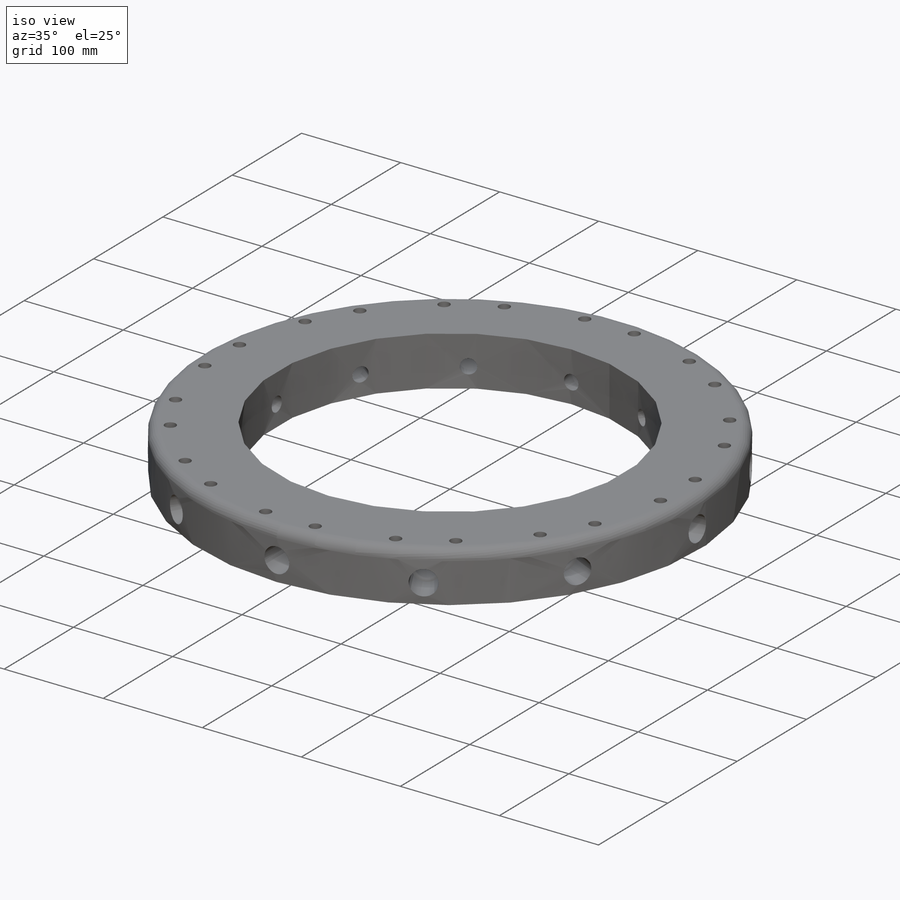
[diagram: iso view]
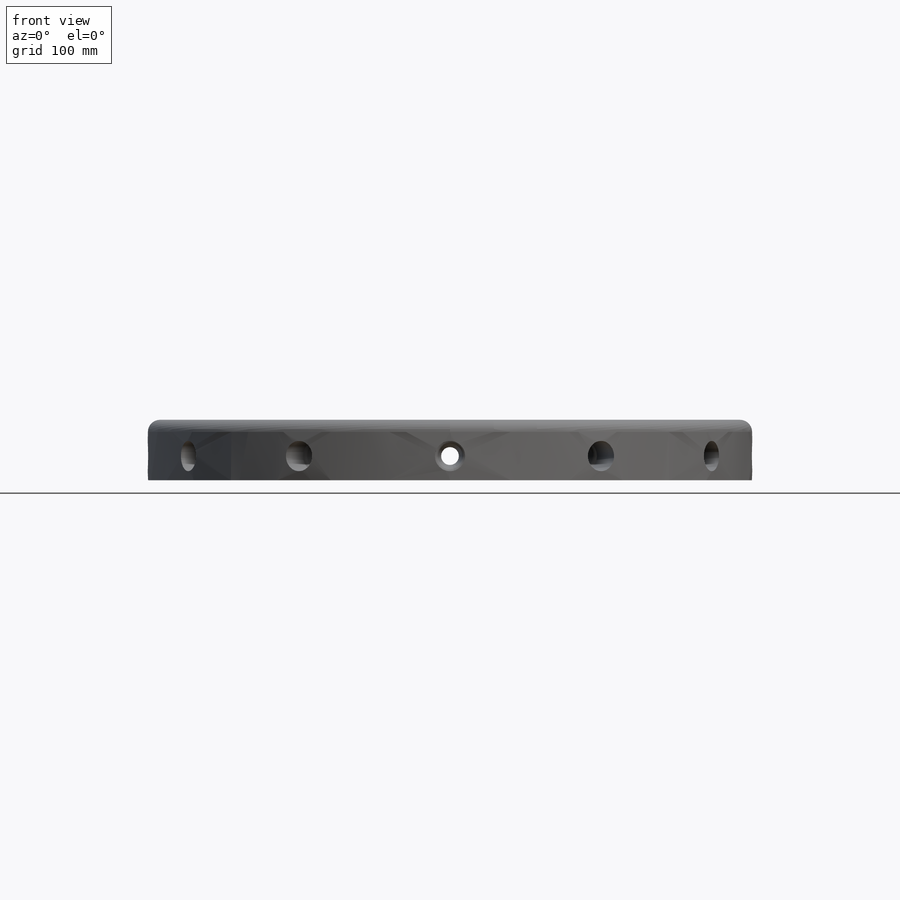
[diagram: front view]
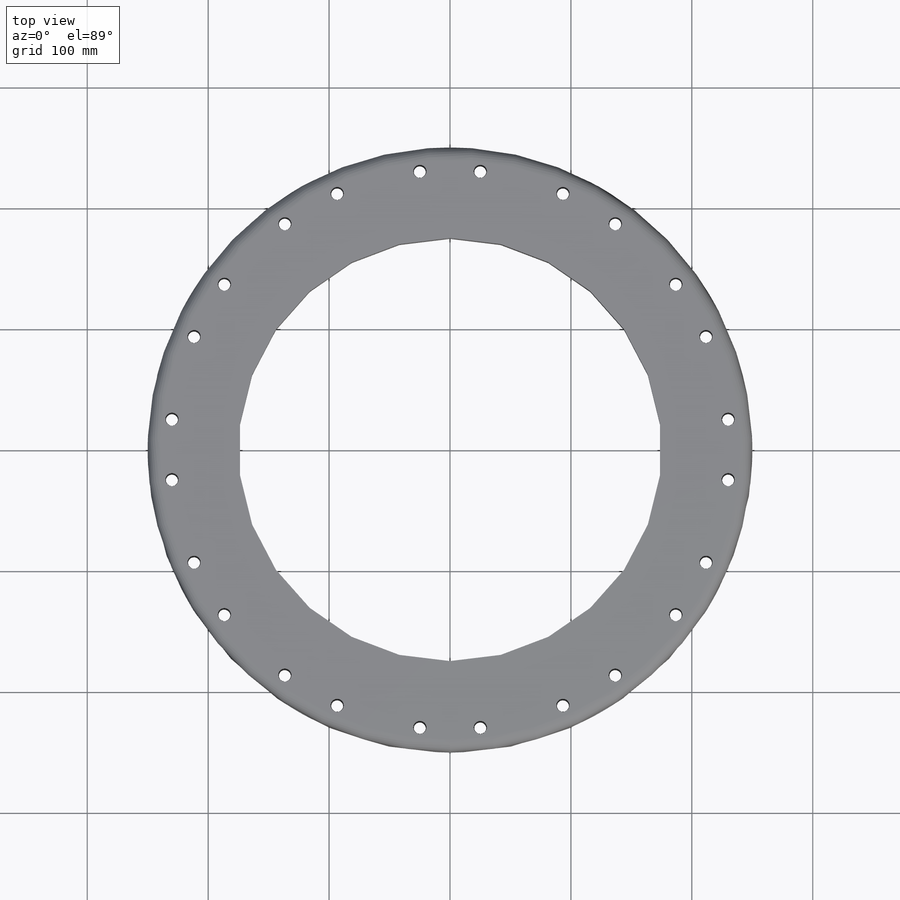
[diagram: top view]
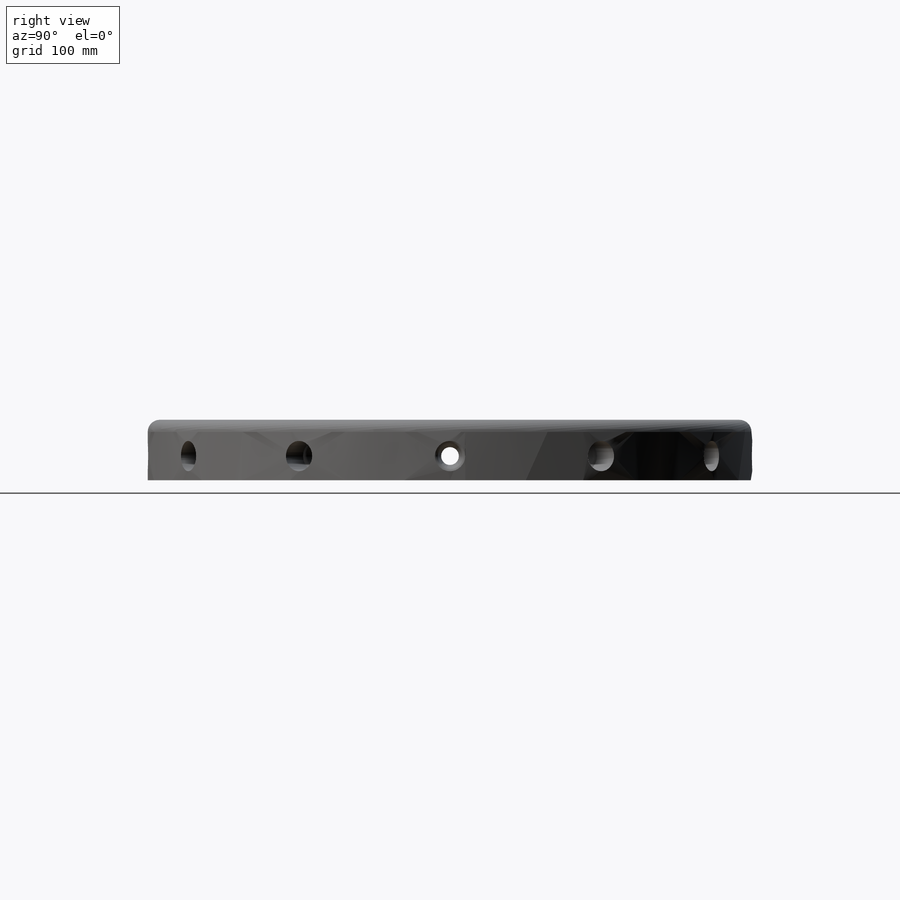
[diagram: right view]
SOLIDWORKS PART (.sldprt)
format: sldprt  version: not decoded by parser v0  size: 403,968 bytes
history: native  units: mm
features: sketch x4, plane x3, material x1, revolve x1, hole x1, cut_revolve x1, pattern_circular x1 (+10 scaffold rows collapsed)
feature tree (22):
  scaffold x10  (default folders/planes/origin — collapsed)
  material  "Materiál <není určen>"
  plane  "XY"
  plane  "XZ"
  plane  "ZY"
  sketch  "Sketch1"  dims[D4=10.0mm D1=350.0mm D2=500.0mm D3=50.0mm]
  revolve  "Revolve1"  Angle=360deg
  hole  "HoleWzd1"  Diameter=10mm Depth=50mm
  sketch  "Sketch3"  dims[D1=25.0mm D2=230.0mm]
  sketch  "Sketch2"  dims[Průměr=10.0mm Hloubka=50.0mm Průměr válc. zahloubení=11.0mm Hloubka válc. zahloubení=20.0mm]
  sketch  "Sketch4"  dims[c1.D6=3.0mm c1.D7=3.0mm c1.D1=20.0mm c1.D2=~168.228198mm c2.D2=10.0deg c2.D3=20.0mm c2.D4=25.0mm c2.D5=220.0mm c2.D7=~23.556087mm c3.D7=100.0deg c3.D8=190.0mm c3.D6=~3.249888mm c4.D6=60.0deg]
  cut_revolve  "Cut-Revolve1"  Angle=360deg
  pattern_circular  "CirPattern1"  Count=12 Angle=360deg
decode coverage: 8 of 8 modeling features carry decoded parameters
note: ~ marks probable driven/reference dimensions
note: suppression state not decoded; provenance and decode notes live in map.json
